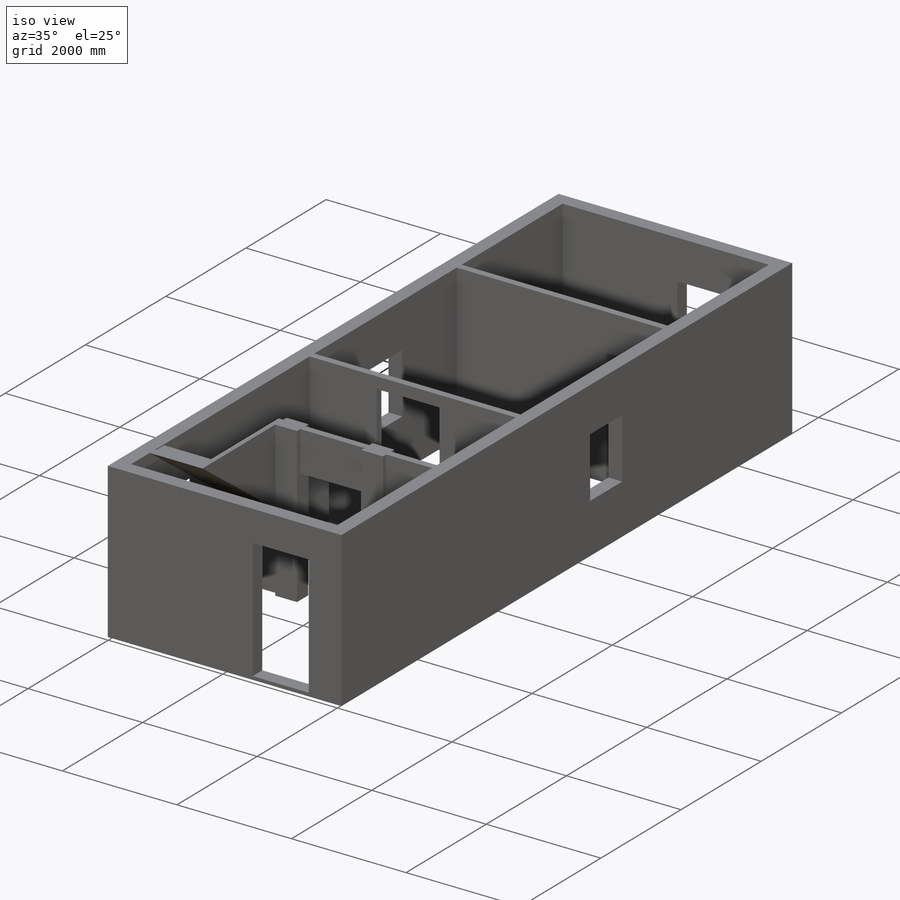
[diagram: iso view]
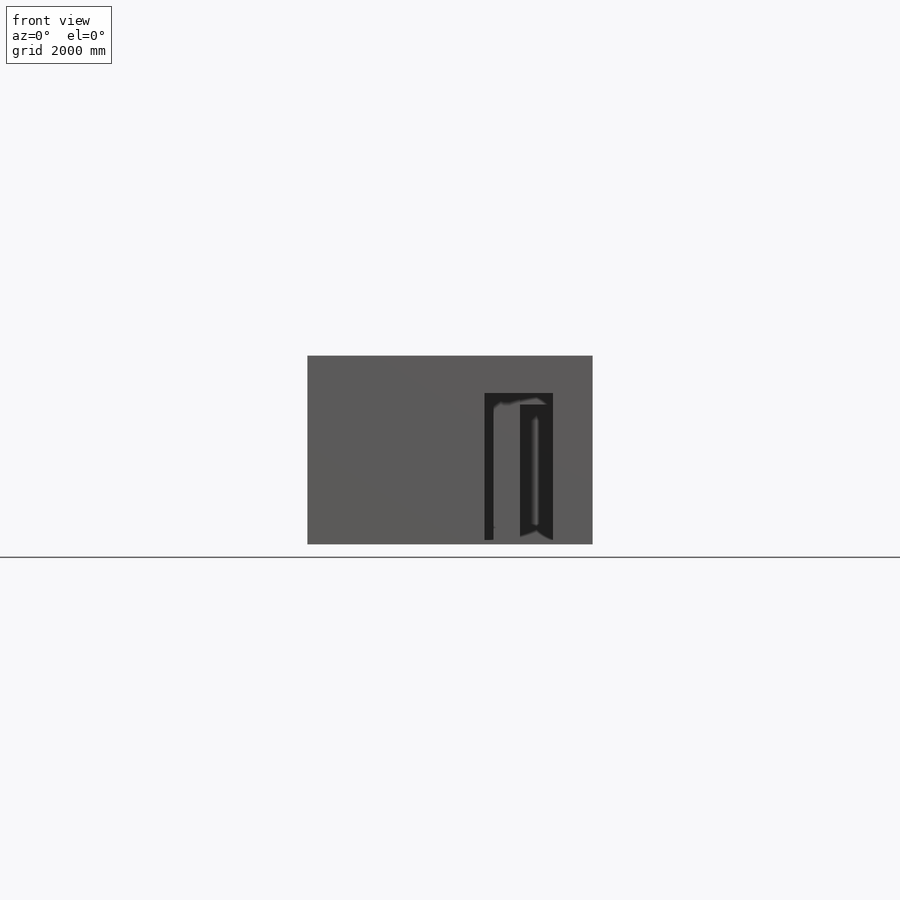
[diagram: front view]
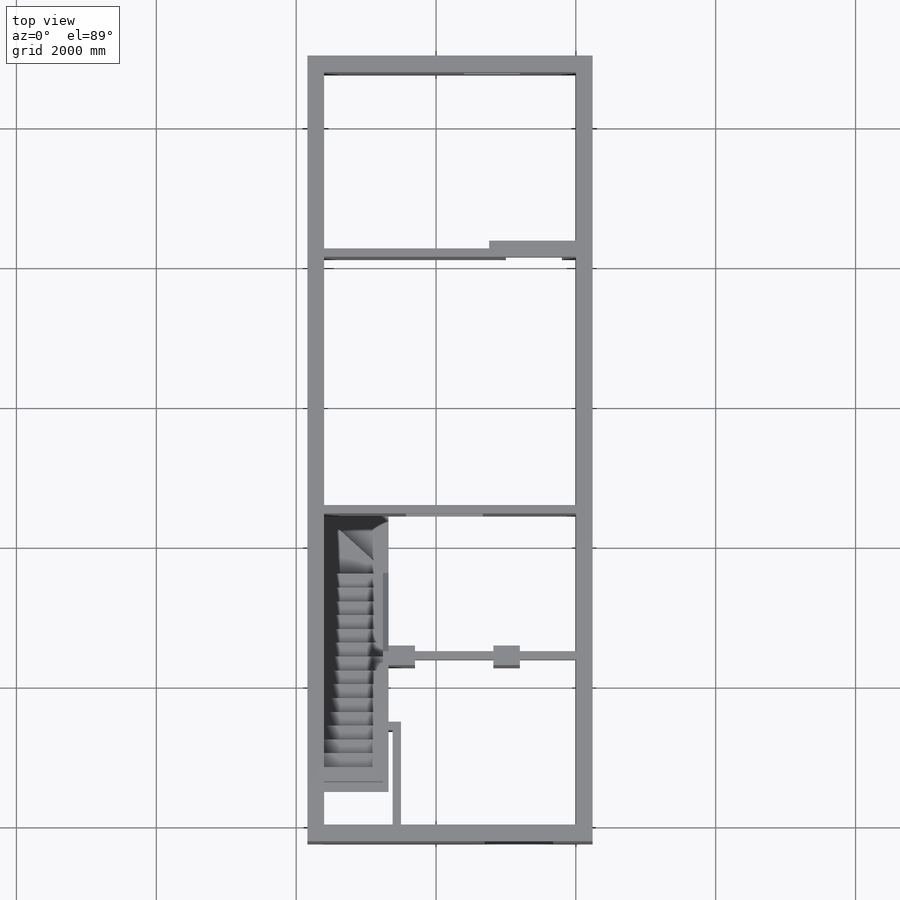
[diagram: top view]
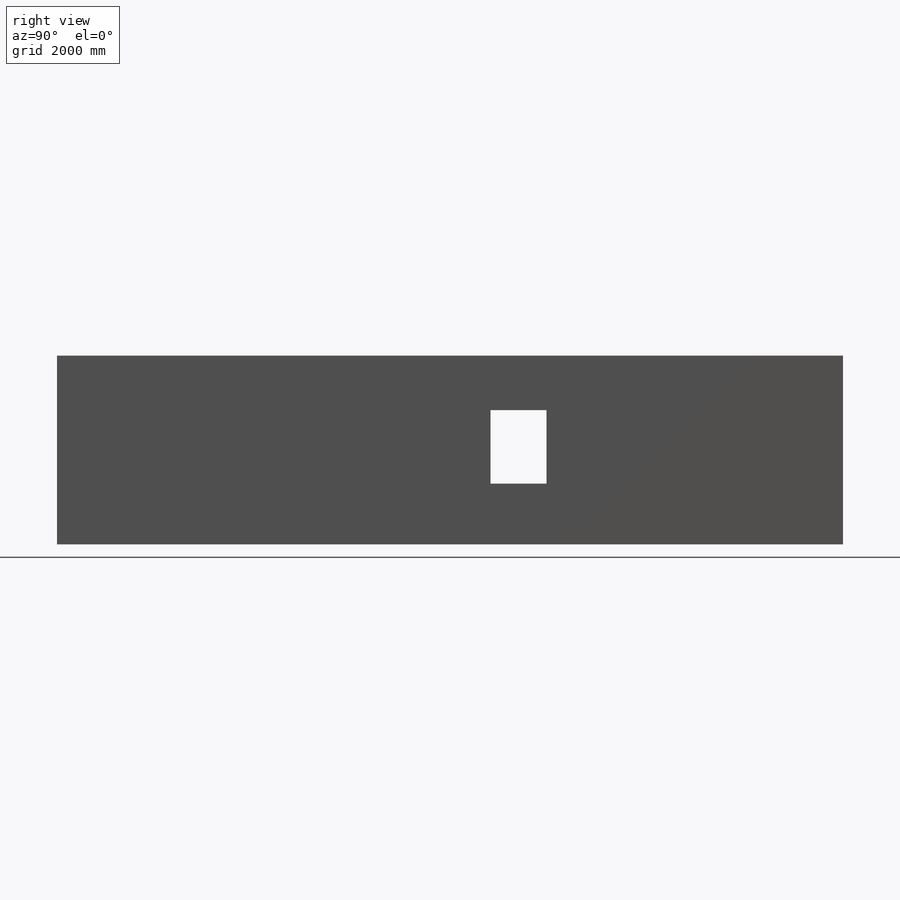
[diagram: right view]
SOLIDWORKS PART (.sldprt)
format: sldprt  version: not decoded by parser v0  size: 1,011,712 bytes
history: native  units: mm
features: sketch x20, plane x4, extrude x4, material x1, pattern_linear x1 (+9 scaffold rows collapsed)
feature tree (39):
  scaffold x9  (default folders/planes/origin — collapsed)
  material  "屋面瓦"
  plane  "前视基准面"
  plane  "上视基准面"
  plane  "右视基准面"
  sketch  "草图1"  dims[c1.D1=~98.159152mm c1.D2=~69.906702mm c2.D1=10760.0mm c2.D2=3600.0mm c3.D1=2700.0mm c3.D5=240.0mm c3.D6=10.0mm c3.D7=5.0mm]
  plane  "中间面-宽向"
  sketch  "草图6"  dims[c1.D1=2400.0mm c1.D2=120.0mm c1.D3=120.0mm c1.D4=20.0mm c2.D1=2520.0mm c2.D5=120.0mm c2.D6=10.0mm c2.D7=5.0mm]
  sketch  "草图12"  dims[c1.D1=~215.367706mm c1.D2=~1032.16226mm c2.D1=200.0mm c2.D2=120.0mm c2.D3=240.0mm c2.D4=800.0mm]
  extrude  "房门框"  Depth=2220mm
  sketch  "草图10"  dims[c1.D2=~509.064817mm c1.D1=~1274.195623mm c2.D2=~466.214451mm c2.D1=2050.0mm c3.D2=800.0mm c3.D3=200.0mm]
  sketch  "草图7"  dims[D1=3550.0mm]
  extrude  "大门墙"  Depth=120mm
  sketch  "草图13"  dims[c1.D1=~1638.055199mm c1.D2=~774.390189mm c2.D1=2400.0mm c2.D2=100.0mm c2.D3=1100.0mm c2.D4=1330.0mm c3.D2=100.0mm]
  sketch  "草图8"  dims[D1=1970.0mm]
  extrude  "天井墙"  Depth=120mm
  sketch  "草图17"  dims[c1.D1=80.0mm c1.D2=80.0mm c1.D3=500.0mm c1.D4=600.0mm c1.D5=830.0mm c1.D6=~135.867704mm c2.D1=840.0mm]
  sketch  "草图18"  dims[c1.D1=1420.0mm c1.D2=~517.049855mm c2.D1=80.0mm]
  sketch  "草图19"  dims[D1=~249.240122mm D2=~674.813392mm]
  sketch  "草图20"  dims[D1=1490.0mm D2=360.0mm D3=740.0mm]
  extrude  "厕所墙"  Depth=1650mm
  sketch  "草图21"  dims[c1.D1=~395.926147mm c2.D1=~36.07247deg c2.D2=200.0mm c2.D3=~247.441183mm]
  pattern_linear  "阵列梯"  Count1=15 Count2=1 Spacing1=247.44mm Spacing2=10mm
  sketch  "草图22"  dims[c1.D1=830.0mm c1.D2=~677.441434mm c2.D1=~73.766895mm c2.D2=~188.84325mm c3.D1=200.0mm]
  sketch  "草图23"  dims[c1.D1=~1239.072234mm c2.D1=200.0mm]
  sketch  "草图14"  dims[c1.D1=~971.77004mm c1.D2=~743.118266mm c2.D1=~781.226895mm c2.D2=~886.025624mm c3.D1=280.0mm c3.D2=380.0mm c3.D3=1120.0mm c3.D4=800.0mm]
  sketch  "草图15"  dims[D2=2000.0mm D1=0.0mm D3=0.0mm]
  sketch  "草图2"  dims[c1.D1=~196.071366mm c1.D2=~90.062166mm c2.D1=350.0mm c2.D2=980.0mm c2.D3=2100.0mm c3.D1=330.0mm c3.D4=60.0mm]
  sketch  "草图4"  dims[c1.D1=~137.182739mm c1.D2=~81.374869mm c2.D1=1050.0mm c2.D2=800.0mm c2.D3=350.0mm c2.D4=960.0mm c3.D3=800.0mm]
  sketch  "草图3"  dims[c1.D1=~131.688911mm c1.D2=~83.581982mm c2.D1=6000.0mm c2.D2=800.0mm c2.D3=870.0mm c2.D4=1050.0mm c3.D1=1390.0mm]
  sketch  "草图16"  dims[c1.D1=~806.796658mm c1.D2=~739.936972mm c2.D1=800.0mm c2.D2=1050.0mm c2.D3=1000.0mm c2.D4=870.0mm]
decode coverage: 25 of 25 modeling features carry decoded parameters
note: ~ marks probable driven/reference dimensions
note: suppression state not decoded; provenance and decode notes live in map.json
